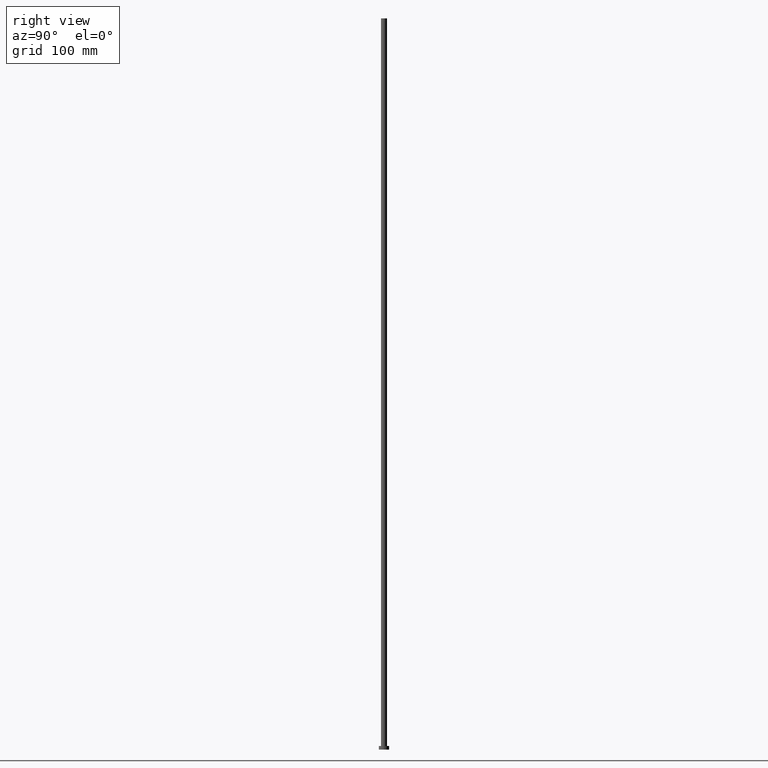
[diagram: clean part render]
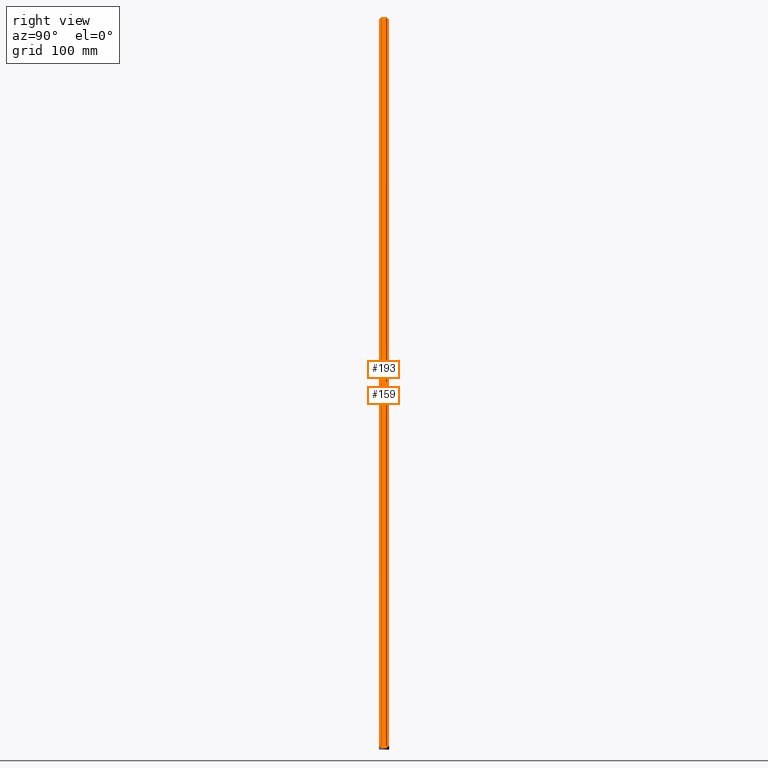
[diagram: same view with one multi-face feature highlighted, each face labeled with its STEP entity id]
A machine part, right view. The highlighted faces form ONE feature: a constant-radius fillet chain: 2 tangent blend faces with common blend radius 4.1 mm. The faces share edges in the B-rep.
Their STEP definitions:
[1] entity #159 (Cylinder):
#9 = CARTESIAN_POINT ( 'NONE',  ( 0.000000000000000000, 0.000000000000000000, 1000.000000000000000 ) ) ;
#19 = ORIENTED_EDGE ( 'NONE', *, *, #125, .T. ) ;
#20 = DIRECTION ( 'NONE',  ( -0.000000000000000000, -0.000000000000000000, -1.000000000000000000 ) ) ;
#22 = ORIENTED_EDGE ( 'NONE', *, *, #66, .F. ) ;
#23 = ORIENTED_EDGE ( 'NONE', *, *, #163, .F. ) ;
#25 = LINE ( 'NONE', #169, #176 ) ;
#30 = DIRECTION ( 'NONE',  ( 0.000000000000000000, 0.000000000000000000, 1.000000000000000000 ) ) ;
#31 = DIRECTION ( 'NONE',  ( 1.000000000000000000, 0.000000000000000000, 0.000000000000000000 ) ) ;
#33 = EDGE_LOOP ( 'NONE', ( #23, #19, #42, #22 ) ) ;
#36 = AXIS2_PLACEMENT_3D ( 'NONE', #149, #30, #31 ) ;
#38 = VERTEX_POINT ( 'NONE', #68 ) ;
#40 = VECTOR ( 'NONE', #20, 1000.000000000000000 ) ;
#42 = ORIENTED_EDGE ( 'NONE', *, *, #74, .T. ) ;
#43 = VERTEX_POINT ( 'NONE', #104 ) ;
#53 = AXIS2_PLACEMENT_3D ( 'NONE', #9, #89, #111 ) ;
#66 = EDGE_CURVE ( 'NONE', #38, #129, #187, .T. ) ;
#68 = CARTESIAN_POINT ( 'NONE',  ( -4.099999999999999645, 0.000000000000000000, 1000.000000000000000 ) ) ;
#70 = CARTESIAN_POINT ( 'NONE',  ( 4.099999999999999645, 5.021051876504146399E-16, 1000.000000000000000 ) ) ;
#74 = EDGE_CURVE ( 'NONE', #43, #129, #170, .T. ) ;
#83 = DIRECTION ( 'NONE',  ( 0.000000000000000000, 0.000000000000000000, 1.000000000000000000 ) ) ;
#89 = DIRECTION ( 'NONE',  ( -0.000000000000000000, -0.000000000000000000, -1.000000000000000000 ) ) ;
#104 = CARTESIAN_POINT ( 'NONE',  ( 4.099999999999999645, 5.021051876504146399E-16, 5.000000000000000000 ) ) ;
#110 = AXIS2_PLACEMENT_3D ( 'NONE', #145, #83, #223 ) ;
#111 = DIRECTION ( 'NONE',  ( -1.000000000000000000, 0.000000000000000000, 0.000000000000000000 ) ) ;
#125 = EDGE_CURVE ( 'NONE', #220, #43, #25, .T. ) ;
#129 = VERTEX_POINT ( 'NONE', #140 ) ;
#140 = CARTESIAN_POINT ( 'NONE',  ( -4.099999999999999645, 0.000000000000000000, 5.000000000000000000 ) ) ;
#145 = CARTESIAN_POINT ( 'NONE',  ( 0.000000000000000000, 0.000000000000000000, 5.000000000000000000 ) ) ;
#146 = CARTESIAN_POINT ( 'NONE',  ( -4.099999999999999645, 0.000000000000000000, 1000.000000000000000 ) ) ;
#149 = CARTESIAN_POINT ( 'NONE',  ( 0.000000000000000000, 0.000000000000000000, 1000.000000000000000 ) ) ;
#152 = CIRCLE ( 'NONE', #36, 4.099999999999999645 ) ;
#159 = ADVANCED_FACE ( 'NONE', ( #250 ), #214, .T. ) ;
#163 = EDGE_CURVE ( 'NONE', #220, #38, #152, .T. ) ;
#169 = CARTESIAN_POINT ( 'NONE',  ( 4.099999999999999645, 5.021051876504146399E-16, 1000.000000000000000 ) ) ;
#170 = CIRCLE ( 'NONE', #110, 4.099999999999999645 ) ;
#176 = VECTOR ( 'NONE', #247, 1000.000000000000000 ) ;
#187 = LINE ( 'NONE', #146, #40 ) ;
#214 = CYLINDRICAL_SURFACE ( 'NONE', #53, 4.099999999999999645 ) ;
#220 = VERTEX_POINT ( 'NONE', #70 ) ;
#223 = DIRECTION ( 'NONE',  ( 1.000000000000000000, 0.000000000000000000, 0.000000000000000000 ) ) ;
#247 = DIRECTION ( 'NONE',  ( -0.000000000000000000, -0.000000000000000000, -1.000000000000000000 ) ) ;
#250 = FACE_OUTER_BOUND ( 'NONE', #33, .T. ) ;
[2] entity #193 (Cylinder):
#3 = DIRECTION ( 'NONE',  ( 1.000000000000000000, 0.000000000000000000, 0.000000000000000000 ) ) ;
#6 = DIRECTION ( 'NONE',  ( 0.000000000000000000, 0.000000000000000000, 1.000000000000000000 ) ) ;
#20 = DIRECTION ( 'NONE',  ( -0.000000000000000000, -0.000000000000000000, -1.000000000000000000 ) ) ;
#25 = LINE ( 'NONE', #169, #176 ) ;
#38 = VERTEX_POINT ( 'NONE', #68 ) ;
#40 = VECTOR ( 'NONE', #20, 1000.000000000000000 ) ;
#43 = VERTEX_POINT ( 'NONE', #104 ) ;
#50 = AXIS2_PLACEMENT_3D ( 'NONE', #127, #6, #3 ) ;
#52 = DIRECTION ( 'NONE',  ( 0.000000000000000000, 0.000000000000000000, 1.000000000000000000 ) ) ;
#66 = EDGE_CURVE ( 'NONE', #38, #129, #187, .T. ) ;
#68 = CARTESIAN_POINT ( 'NONE',  ( -4.099999999999999645, 0.000000000000000000, 1000.000000000000000 ) ) ;
#70 = CARTESIAN_POINT ( 'NONE',  ( 4.099999999999999645, 5.021051876504146399E-16, 1000.000000000000000 ) ) ;
#91 = DIRECTION ( 'NONE',  ( -1.000000000000000000, 0.000000000000000000, 0.000000000000000000 ) ) ;
#99 = EDGE_CURVE ( 'NONE', #38, #220, #132, .T. ) ;
#102 = CIRCLE ( 'NONE', #236, 4.099999999999999645 ) ;
#104 = CARTESIAN_POINT ( 'NONE',  ( 4.099999999999999645, 5.021051876504146399E-16, 5.000000000000000000 ) ) ;
#125 = EDGE_CURVE ( 'NONE', #220, #43, #25, .T. ) ;
#127 = CARTESIAN_POINT ( 'NONE',  ( 0.000000000000000000, 0.000000000000000000, 1000.000000000000000 ) ) ;
#129 = VERTEX_POINT ( 'NONE', #140 ) ;
#132 = CIRCLE ( 'NONE', #50, 4.099999999999999645 ) ;
#134 = AXIS2_PLACEMENT_3D ( 'NONE', #151, #212, #91 ) ;
#137 = ORIENTED_EDGE ( 'NONE', *, *, #125, .F. ) ;
#140 = CARTESIAN_POINT ( 'NONE',  ( -4.099999999999999645, 0.000000000000000000, 5.000000000000000000 ) ) ;
#146 = CARTESIAN_POINT ( 'NONE',  ( -4.099999999999999645, 0.000000000000000000, 1000.000000000000000 ) ) ;
#148 = FACE_OUTER_BOUND ( 'NONE', #216, .T. ) ;
#151 = CARTESIAN_POINT ( 'NONE',  ( 0.000000000000000000, 0.000000000000000000, 1000.000000000000000 ) ) ;
#166 = ORIENTED_EDGE ( 'NONE', *, *, #66, .T. ) ;
#169 = CARTESIAN_POINT ( 'NONE',  ( 4.099999999999999645, 5.021051876504146399E-16, 1000.000000000000000 ) ) ;
#176 = VECTOR ( 'NONE', #247, 1000.000000000000000 ) ;
#187 = LINE ( 'NONE', #146, #40 ) ;
#189 = DIRECTION ( 'NONE',  ( 1.000000000000000000, 0.000000000000000000, 0.000000000000000000 ) ) ;
#193 = ADVANCED_FACE ( 'NONE', ( #148 ), #249, .T. ) ;
#199 = EDGE_CURVE ( 'NONE', #129, #43, #102, .T. ) ;
#210 = ORIENTED_EDGE ( 'NONE', *, *, #199, .T. ) ;
#212 = DIRECTION ( 'NONE',  ( -0.000000000000000000, -0.000000000000000000, -1.000000000000000000 ) ) ;
#216 = EDGE_LOOP ( 'NONE', ( #137, #221, #166, #210 ) ) ;
#220 = VERTEX_POINT ( 'NONE', #70 ) ;
#221 = ORIENTED_EDGE ( 'NONE', *, *, #99, .F. ) ;
#232 = CARTESIAN_POINT ( 'NONE',  ( 0.000000000000000000, 0.000000000000000000, 5.000000000000000000 ) ) ;
#236 = AXIS2_PLACEMENT_3D ( 'NONE', #232, #52, #189 ) ;
#247 = DIRECTION ( 'NONE',  ( -0.000000000000000000, -0.000000000000000000, -1.000000000000000000 ) ) ;
#249 = CYLINDRICAL_SURFACE ( 'NONE', #134, 4.099999999999999645 ) ;